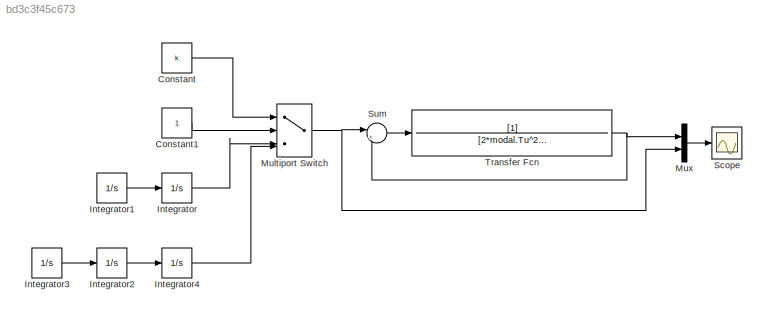
MODEL slx_bd3c3f45c673
KIND model
CONFIG AbsTol = auto
CONFIG EnableMultiTasking = off
CONFIG FixedStep = auto
CONFIG MaxStep = 0.001
CONFIG MinStep = auto
CONFIG RelTol = 1e-3
CONFIG SampleTimeConstraint = Unconstrained
CONFIG SolverName = ode23tb
CONFIG StartTime = 0.0
CONFIG StopTime = Tmdl
BLOCK [Constant] Constant
  Value = k
BLOCK [Constant] Constant1
BLOCK [Integrator] Integrator
BLOCK [Integrator] Integrator1
  InitialCondition = 1
BLOCK [Integrator] Integrator2
BLOCK [Integrator] Integrator3
  InitialCondition = 1
BLOCK [Integrator] Integrator4
BLOCK [MultiPortSwitch] Multiport Switch
  InputSameDT = off
  SaturateOnIntegerOverflow = off
BLOCK [Mux] Mux
  DisplayOption = bar
  Inputs = 2
BLOCK [Scope] Scope
  Floating = off
  NumInputPorts = 1
  ScopeSpecificationString = Simulink.scopes.TimeScopeBlockCfg('CurrentConfiguration', extmgr.ConfigurationSet(extmgr.Configuration('Core','General UI',true),extmgr.Configuration('Core','Source UI',true),extmgr.Configuration('Sources','WiredSimulink',true,'DataLogging',true,'DataLoggingVariableName','y','DataLoggingSaveFormat','Array'),extmgr.Configuration('Visuals','Time Domain',true,'SerializedDisplays',{struct('MinYLimReal...<+1461ch>
BLOCK [Sum] Sum
  Inputs = |+-
BLOCK [TransferFcn] Transfer Fcn
  Denominator = [2*modal.Tu^2 2*modal.Tu 0]
LINE Constant1:1 -> Multiport Switch:2
LINE Constant:1 -> Multiport Switch:1
LINE Integrator1:1 -> Integrator:1
LINE Integrator2:1 -> Integrator4:1
LINE Integrator3:1 -> Integrator2:1
LINE Integrator4:1 -> Multiport Switch:4
LINE Integrator:1 -> Multiport Switch:3
NET Multiport Switch:1 -> Mux:2, Sum:1
LINE Mux:1 -> Scope:1
LINE Sum:1 -> Transfer Fcn:1
NET Transfer Fcn:1 -> Mux:1, Sum:2
note: NET lines group one-source signal fan-out (src -> all destinations, sorted); 1:1 wires keep LINE
